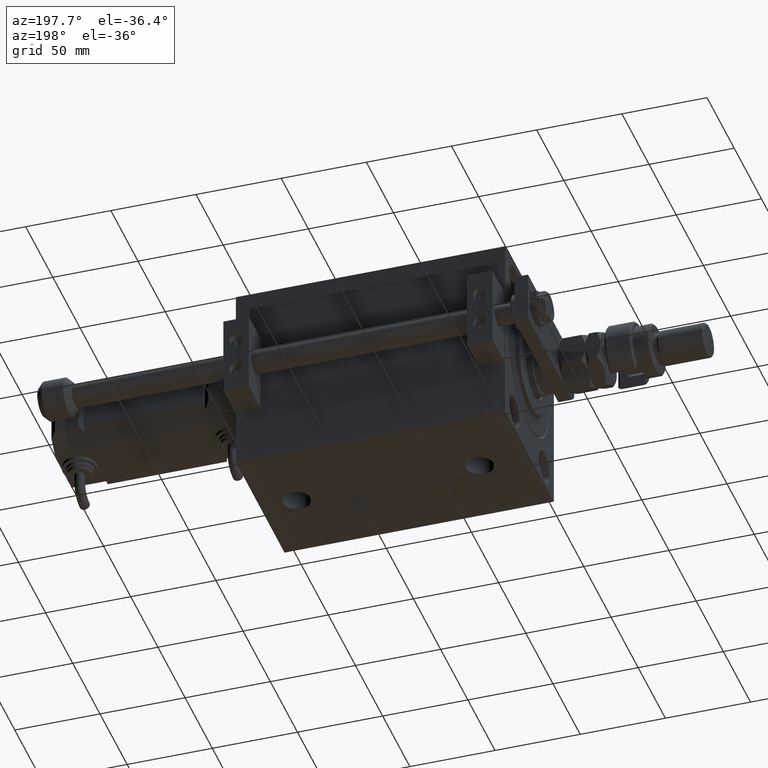
[diagram: clean part render]
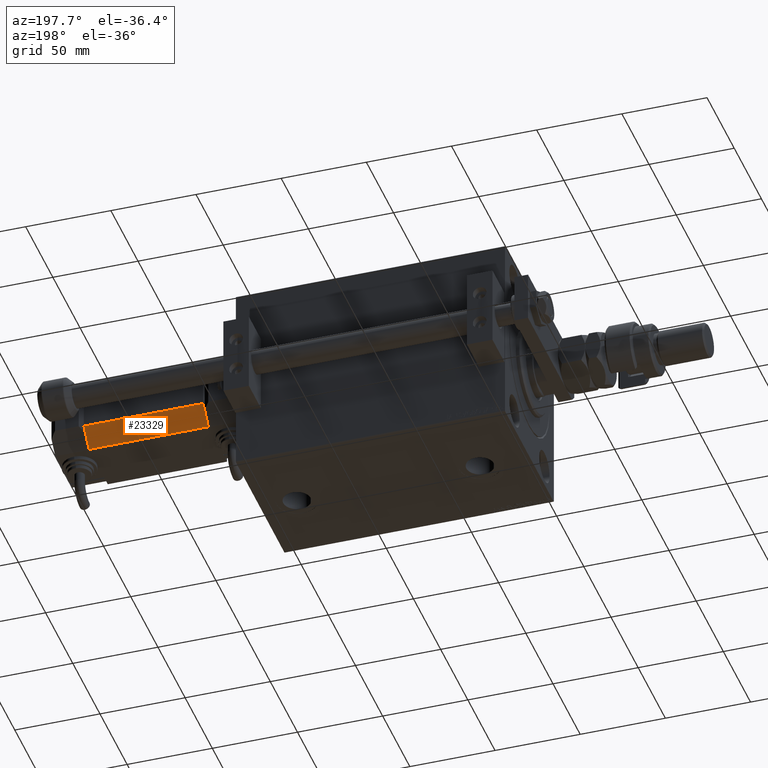
[diagram: same view with one face highlighted and labeled with its STEP entity id]
A machine part, auxiliary view. The second image highlights one B-rep face of the part: STEP entity #23329.
In plain terms, the highlighted planar face has unit normal (-0, -0.7071, 0.7071).
Its self-contained STEP definition (entity closure, byte-faithful):
#18 = CARTESIAN_POINT ( 'NONE',  ( 10.49999999999997868, 21.99999999999999645, 70.00000000000000000 ) ) ;
#286 = LINE ( 'NONE', #18, #47618 ) ;
#3660 = EDGE_CURVE ( 'NONE', #38734, #7885, #25792, .T. ) ;
#5348 = DIRECTION ( 'NONE',  ( 0.7071067811865465735, -0.7071067811865485719, -0.000000000000000000 ) ) ;
#7149 = ORIENTED_EDGE ( 'NONE', *, *, #10069, .F. ) ;
#7330 = VERTEX_POINT ( 'NONE', #48885 ) ;
#7647 = DIRECTION ( 'NONE',  ( -0.7071067811865465735, 0.7071067811865485719, -0.000000000000000000 ) ) ;
#7769 = PLANE ( 'NONE',  #46341 ) ;
#7885 = VERTEX_POINT ( 'NONE', #10594 ) ;
#9036 = EDGE_CURVE ( 'NONE', #7330, #38294, #286, .T. ) ;
#10069 = EDGE_CURVE ( 'NONE', #7885, #7330, #27518, .T. ) ;
#10594 = CARTESIAN_POINT ( 'NONE',  ( 20.00000000000000000, 12.49999999999994671, 70.00000000000000000 ) ) ;
#12709 = VECTOR ( 'NONE', #38349, 1000.000000000000000 ) ;
#15801 = CARTESIAN_POINT ( 'NONE',  ( 16.25000000000000355, 16.24999999999995737, 70.00000000000000000 ) ) ;
#15973 = EDGE_CURVE ( 'NONE', #38294, #38734, #47315, .T. ) ;
#16553 = VECTOR ( 'NONE', #5348, 1000.000000000000000 ) ;
#17694 = ORIENTED_EDGE ( 'NONE', *, *, #15973, .F. ) ;
#19467 = DIRECTION ( 'NONE',  ( -0.7071067811865485719, -0.7071067811865464625, -0.000000000000000000 ) ) ;
#20196 = CARTESIAN_POINT ( 'NONE',  ( 20.00000000000000000, 12.49999999999994671, 0.000000000000000000 ) ) ;
#21699 = CARTESIAN_POINT ( 'NONE',  ( 20.00000000000000000, 12.49999999999994671, 70.00000000000000000 ) ) ;
#23329 = ADVANCED_FACE ( 'NONE', ( #32006 ), #7769, .F. ) ;
#25029 = VECTOR ( 'NONE', #7647, 1000.000000000000000 ) ;
#25792 = LINE ( 'NONE', #21699, #12709 ) ;
#26958 = ORIENTED_EDGE ( 'NONE', *, *, #3660, .F. ) ;
#27518 = LINE ( 'NONE', #15801, #25029 ) ;
#29685 = EDGE_LOOP ( 'NONE', ( #7149, #26958, #17694, #41340 ) ) ;
#30668 = CARTESIAN_POINT ( 'NONE',  ( 10.49999999999997868, 21.99999999999999645, 0.000000000000000000 ) ) ;
#32006 = FACE_OUTER_BOUND ( 'NONE', #29685, .T. ) ;
#38294 = VERTEX_POINT ( 'NONE', #45967 ) ;
#38349 = DIRECTION ( 'NONE',  ( 0.000000000000000000, 0.000000000000000000, 1.000000000000000000 ) ) ;
#38734 = VERTEX_POINT ( 'NONE', #20196 ) ;
#41340 = ORIENTED_EDGE ( 'NONE', *, *, #9036, .F. ) ;
#45967 = CARTESIAN_POINT ( 'NONE',  ( 10.49999999999997868, 21.99999999999999645, 0.000000000000000000 ) ) ;
#46054 = DIRECTION ( 'NONE',  ( 0.000000000000000000, 0.000000000000000000, -1.000000000000000000 ) ) ;
#46341 = AXIS2_PLACEMENT_3D ( 'NONE', #48924, #19467, #52724 ) ;
#47315 = LINE ( 'NONE', #30668, #16553 ) ;
#47618 = VECTOR ( 'NONE', #46054, 1000.000000000000000 ) ;
#48885 = CARTESIAN_POINT ( 'NONE',  ( 10.49999999999997868, 21.99999999999999645, 70.00000000000000000 ) ) ;
#48924 = CARTESIAN_POINT ( 'NONE',  ( 10.49999999999997868, 21.99999999999999645, 70.00000000000000000 ) ) ;
#52724 = DIRECTION ( 'NONE',  ( 0.000000000000000000, 0.000000000000000000, -1.000000000000000000 ) ) ;